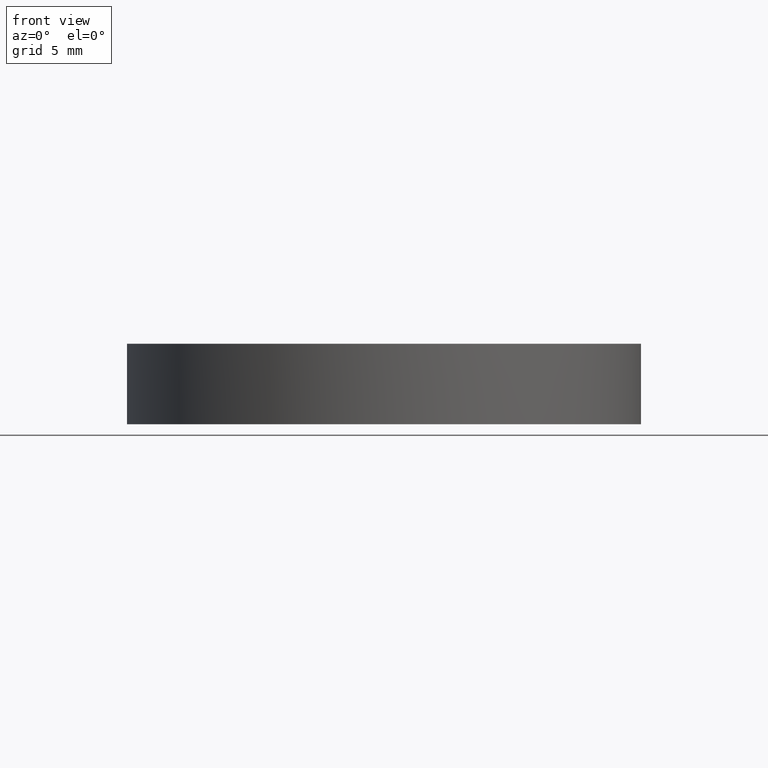
[diagram: clean part render]
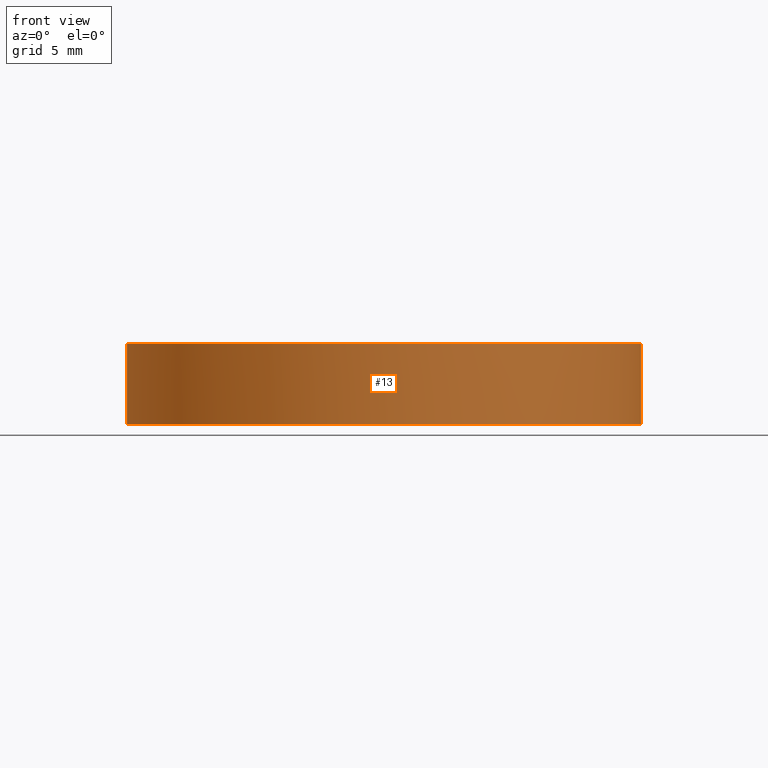
[diagram: same view with one face highlighted and labeled with its STEP entity id]
A machine part, front view. The second image highlights one B-rep face of the part: STEP entity #13.
In plain terms, the highlighted cylindrical surface (partial cylindrical patch) has radius 12.7 mm, axis along (0, 0, 1).
Its self-contained STEP definition (entity closure, byte-faithful):
#7 = DIRECTION ( 'NONE',  ( 1.000000000000000000, 0.0000000000000000000, 0.0000000000000000000 ) ) ;
#9 = ORIENTED_EDGE ( 'NONE', *, *, #114, .T. ) ;
#13 = ADVANCED_FACE ( 'NONE', ( #51 ), #66, .T. ) ;
#14 = VECTOR ( 'NONE', #89, 1000.000000000000000 ) ;
#16 = VERTEX_POINT ( 'NONE', #94 ) ;
#18 = CARTESIAN_POINT ( 'NONE',  ( 4.996003610813200500E-016, 2.442490654175340100E-015, -0.07777051506895491000 ) ) ;
#20 = DIRECTION ( 'NONE',  ( 0.0000000000000000000, 0.0000000000000000000, 1.000000000000000000 ) ) ;
#22 = EDGE_CURVE ( 'NONE', #158, #16, #47, .T. ) ;
#28 = AXIS2_PLACEMENT_3D ( 'NONE', #105, #64, #210 ) ;
#32 = CARTESIAN_POINT ( 'NONE',  ( -12.69999999999999900, 3.997792089092478900E-015, -0.07777051506895491000 ) ) ;
#34 = CIRCLE ( 'NONE', #150, 12.69999999999999900 ) ;
#45 = CARTESIAN_POINT ( 'NONE',  ( 4.996003610813200500E-016, 2.442490654175340100E-015, -0.07777051506895491000 ) ) ;
#47 = LINE ( 'NONE', #194, #231 ) ;
#48 = ORIENTED_EDGE ( 'NONE', *, *, #104, .T. ) ;
#51 = FACE_OUTER_BOUND ( 'NONE', #212, .T. ) ;
#54 = DIRECTION ( 'NONE',  ( 1.000000000000000000, 0.0000000000000000000, 0.0000000000000000000 ) ) ;
#59 = ORIENTED_EDGE ( 'NONE', *, *, #22, .T. ) ;
#64 = DIRECTION ( 'NONE',  ( -0.0000000000000000000, -0.0000000000000000000, -1.000000000000000000 ) ) ;
#65 = EDGE_CURVE ( 'NONE', #197, #71, #34, .T. ) ;
#66 = CYLINDRICAL_SURFACE ( 'NONE', #175, 12.69999999999999900 ) ;
#71 = VERTEX_POINT ( 'NONE', #141 ) ;
#74 = ORIENTED_EDGE ( 'NONE', *, *, #151, .F. ) ;
#82 = CIRCLE ( 'NONE', #28, 12.69999999999999900 ) ;
#89 = DIRECTION ( 'NONE',  ( 0.0000000000000000000, 0.0000000000000000000, 1.000000000000000000 ) ) ;
#94 = CARTESIAN_POINT ( 'NONE',  ( 12.69999999999999900, 2.442490654175340100E-015, 3.899999999999999900 ) ) ;
#104 = EDGE_CURVE ( 'NONE', #71, #158, #143, .T. ) ;
#105 = CARTESIAN_POINT ( 'NONE',  ( 4.996003610813200500E-016, 2.442490654175340100E-015, 3.899999999999999900 ) ) ;
#109 = VERTEX_POINT ( 'NONE', #223 ) ;
#114 = EDGE_CURVE ( 'NONE', #16, #109, #82, .T. ) ;
#137 = CARTESIAN_POINT ( 'NONE',  ( 4.996003610813200500E-016, 2.442490654175340100E-015, -0.07777051506895491000 ) ) ;
#141 = CARTESIAN_POINT ( 'NONE',  ( -3.410605131648479900E-013, -12.69999999999749100, -0.07777051506895968400 ) ) ;
#143 = CIRCLE ( 'NONE', #145, 12.69999999999999900 ) ;
#145 = AXIS2_PLACEMENT_3D ( 'NONE', #45, #208, #177 ) ;
#150 = AXIS2_PLACEMENT_3D ( 'NONE', #137, #220, #7 ) ;
#151 = EDGE_CURVE ( 'NONE', #197, #109, #186, .T. ) ;
#155 = DIRECTION ( 'NONE',  ( 0.0000000000000000000, 0.0000000000000000000, 1.000000000000000000 ) ) ;
#158 = VERTEX_POINT ( 'NONE', #162 ) ;
#162 = CARTESIAN_POINT ( 'NONE',  ( 12.69999999999999900, 2.442490654175340100E-015, -0.07777051506895491000 ) ) ;
#175 = AXIS2_PLACEMENT_3D ( 'NONE', #18, #20, #54 ) ;
#177 = DIRECTION ( 'NONE',  ( 1.000000000000000000, 0.0000000000000000000, 0.0000000000000000000 ) ) ;
#186 = LINE ( 'NONE', #32, #14 ) ;
#194 = CARTESIAN_POINT ( 'NONE',  ( 12.69999999999999900, 2.442490654175340100E-015, -0.07777051506895491000 ) ) ;
#197 = VERTEX_POINT ( 'NONE', #211 ) ;
#208 = DIRECTION ( 'NONE',  ( 0.0000000000000000000, 0.0000000000000000000, 1.000000000000000000 ) ) ;
#209 = ORIENTED_EDGE ( 'NONE', *, *, #65, .T. ) ;
#210 = DIRECTION ( 'NONE',  ( 1.000000000000000000, 0.0000000000000000000, 0.0000000000000000000 ) ) ;
#211 = CARTESIAN_POINT ( 'NONE',  ( -12.69999999999999900, 3.997792089092478900E-015, -0.07777051506895491000 ) ) ;
#212 = EDGE_LOOP ( 'NONE', ( #74, #209, #48, #59, #9 ) ) ;
#220 = DIRECTION ( 'NONE',  ( 0.0000000000000000000, 0.0000000000000000000, 1.000000000000000000 ) ) ;
#223 = CARTESIAN_POINT ( 'NONE',  ( -12.69999999999999900, 3.997792089092478900E-015, 3.899999999999999900 ) ) ;
#231 = VECTOR ( 'NONE', #155, 1000.000000000000000 ) ;